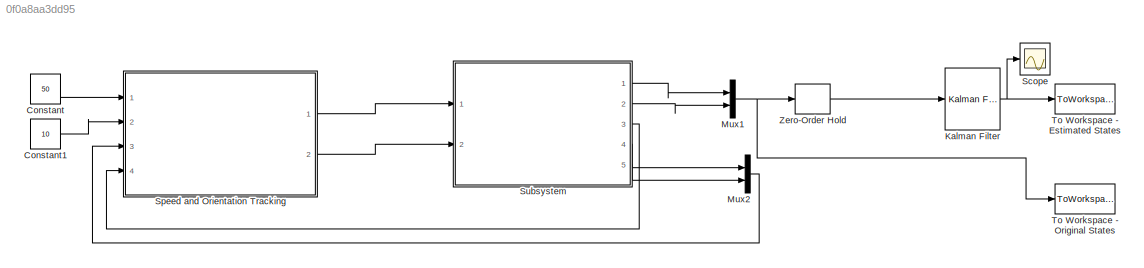
MODEL slx_0f0a8aa3dd95
KIND model
CONFIG AbsTol = auto
CONFIG FixedStep = auto
CONFIG MaxStep = auto
CONFIG MinStep = auto
CONFIG RelTol = 1e-3
CONFIG SampleTimeConstraint = Unconstrained
CONFIG Solver = ode45
CONFIG SolverMode = SingleTasking
CONFIG SolverName = ode45
CONFIG StartTime = 0.0
CONFIG StopTime = 10.0
BLOCK [Constant] Constant
  Value = 50
BLOCK [Constant] Constant1
  Value = 10
BLOCK [Reference] Kalman Filter  REF=ctrlSharedLib/Kalman Filter
  A = [0 1 1;1 0 1;0 1 0]
  AddEnablePort = off
  AddInputPort = off
  B = 1
  C = [1 0 0; 0 0 1]
  D = 0
  ExternalReset = None
  G = 1
  H = 0
  InitialEstimateSource = Dialog
  ModelSource = Individual A, B, C, D matrices
  ModelSourceVariable = ss(0.95,1,1,0,1)
  N = 0
  NumberOfInputs = 1
  NumberOfOutputs = 1
  NumberOfProcessNoiseInputs = 1
  NumberOfStates = 1
  OutputEstimatedY = off
  OutputP = off
  P0 = 10
  Ports = [1, 1]
  Q = 0.05
  R = 1
  SourceBlock = ctrlSharedLib/Kalman Filter
  SourceType = ctrlKalmanFilter
  TimeDomain = Discrete-Time
  TimeInvariantG = on
  TimeInvariantH = on
  TimeInvariantN = on
  TimeInvariantQ = on
  TimeInvariantR = on
  Ts = -1
  UseCurrentEstimator = on
  UseGH = off
  UseK = off
  X0 = 0
BLOCK [Mux] Mux1
  DisplayOption = bar
  Inputs = 2
  Ports = [2, 1]
BLOCK [Mux] Mux2
  DisplayOption = bar
  Inputs = 2
  Ports = [2, 1]
BLOCK [Scope] Scope
  DataFormat = StructureWithTime
  Decimation = 1
  Grid = on
  LimitDataPoints = off
  MaxDataPoints = 5000
  NumInputPorts = 1
  Ports = [1]
  SampleInput = off
  SampleTime = -1
  SaveName = ScopeData
  SaveToWorkspace = off
  ShowLegends = off
  TickLabels = OneTimeTick
  TimeRange = auto
  YMax = 13.1738
  YMin = -1.46376
  ZoomMode = on
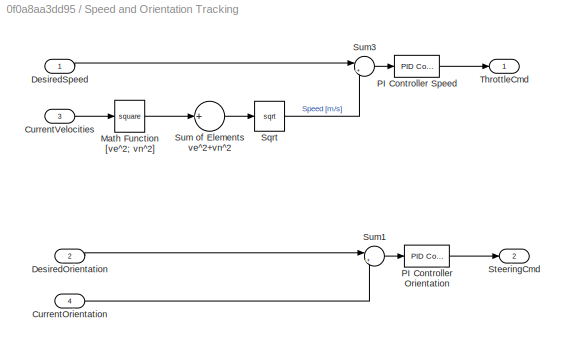
BLOCK [SubSystem] Speed and Orientation Tracking 
  Ports = [4, 2]
  RequestExecContextInheritance = off
  Variant = off
BLOCK [Inport] Speed and Orientation Tracking /CurrentOrientation
  IconDisplay = Port number
  Port = 4
BLOCK [Inport] Speed and Orientation Tracking /CurrentVelocities
  IconDisplay = Port number
  Port = 3
BLOCK [Inport] Speed and Orientation Tracking /DesiredOrientation
  IconDisplay = Port number
  Port = 2
BLOCK [Inport] Speed and Orientation Tracking /DesiredSpeed
  IconDisplay = Port number
BLOCK [Math] Speed and Orientation Tracking /Math Function [ve^2; vn^2]
  Operator = square
  Ports = [1, 1]
BLOCK [Reference] Speed and Orientation Tracking /PI Controller Orientation  REF=simulink/Continuous/PID Controller
  AntiWindupMode = clamping
  Controller = PI
  ControllerParametersSource = internal
  D = 0
  DGainOutDataTypeStr = Inherit: Inherit via internal rule
  DOutDataTypeStr = Inherit: Inherit via internal rule
  DOutMax = []
  DOutMin = []
  DParamDataTypeStr = Inherit: Inherit via internal rule
  DParamMax = []
  DParamMin = []
  DProdOutDataTypeStr = Inherit: Inherit via internal rule
  DifferentiatorICPrevScaledInput = 0
  DifferentiatorOutDataTypeStr = Inherit: Inherit via internal rule
  DifferentiatorOutMax = []
  DifferentiatorOutMin = []
  ExternalReset = none
  FilterContinuousStateAttributes = ''
  FilterMethod = Forward Euler
  FilterOutDataTypeStr = Inherit: Inherit via internal rule
  FilterOutMax = []
  FilterOutMin = []
  FilterRTWStateStorageClass = Auto
  FilterStateMustResolveToSignalObject = off
  Form = Parallel
  I = 0.3
  IGainOutDataTypeStr = Inherit: Inherit via internal rule
  IOutDataTypeStr = Inherit: Inherit via internal rule
  IOutMax = []
  IOutMin = []
  IParamDataTypeStr = Inherit: Inherit via internal rule
  IParamMax = []
  IParamMin = []
  IProdOutDataTypeStr = Inherit: Inherit via internal rule
  IgnoreLimit = off
  InitialConditionForFilter = 0
  InitialConditionForIntegrator = 0
  InitialConditionSource = internal
  IntegratorContinuousStateAttributes = ''
  IntegratorMethod = Forward Euler
  IntegratorOutDataTypeStr = Inherit: Inherit via internal rule
  IntegratorOutMax = []
  IntegratorOutMin = []
  IntegratorRTWStateStorageClass = Auto
  IntegratorStateMustResolveToSignalObject = off
  Kb = 1
  KbOutDataTypeStr = Inherit: Inherit via internal rule
  KbOutMax = []
  KbOutMin = []
  KbParamDataTypeStr = Inherit: Inherit via internal rule
  KbParamMax = []
  KbParamMin = []
  Kt = 1
  KtOutDataTypeStr = Inherit: Inherit via internal rule
  KtOutMax = []
  KtOutMin = []
  KtParamDataTypeStr = Inherit: Inherit via internal rule
  KtParamMax = []
  KtParamMin = []
  LimitOutput = on
  LinearizeAsGain = off
  LockScale = off
  LowerSaturationLimit = -20
  N = 100
  NGainOutDataTypeStr = Inherit: Inherit via internal rule
  NOutDataTypeStr = Inherit: Inherit via internal rule
  NOutMax = []
  NOutMin = []
  NParamDataTypeStr = Inherit: Inherit via internal rule
  NParamMax = []
  NParamMin = []
  NProdOutDataTypeStr = Inherit: Inherit via internal rule
  P = 1
  PGainOutDataTypeStr = Inherit: Inherit via internal rule
  POutDataTypeStr = Inherit: Inherit via internal rule
  POutMax = []
  POutMin = []
  PParamDataTypeStr = Inherit: Inherit via internal rule
  PParamMax = []
  PParamMin = []
  PProdOutDataTypeStr = Inherit: Inherit via internal rule
  Ports = [1, 1]
  RndMeth = Floor
  SampleTime = -1
  SaturateOnIntegerOverflow = off
  SaturationOutDataTypeStr = Inherit: Same as input
  SaturationOutMax = []
  SaturationOutMin = []
  SourceBlock = simulink/Continuous/PID Controller
  SourceType = PID 1dof
  SumAccumDataTypeStr = Inherit: Inherit via internal rule
  SumDAccumDataTypeStr = Inherit: Inherit via internal rule
  SumDOutDataTypeStr = Inherit: Inherit via internal rule
  SumDOutMax = []
  SumDOutMin = []
  SumI1AccumDataTypeStr = Inherit: Inherit via internal rule
  SumI1OutDataTypeStr = Inherit: Inherit via internal rule
  SumI1OutMax = []
  SumI1OutMin = []
  SumI2AccumDataTypeStr = Inherit: Inherit via internal rule
  SumI2OutDataTypeStr = Inherit: Inherit via internal rule
  SumI2OutMax = []
  SumI2OutMin = []
  SumI3AccumDataTypeStr = Inherit: Inherit via internal rule
  SumI3OutDataTypeStr = Inherit: Inherit via internal rule
  SumI3OutMax = []
  SumI3OutMin = []
  SumOutDataTypeStr = Inherit: Inherit via internal rule
  SumOutMax = []
  SumOutMin = []
  TimeDomain = Continuous-time
  TrackingMode = off
  UpperSaturationLimit = 20
  UseFilter = on
  ZeroCross = on
BLOCK [Reference] Speed and Orientation Tracking /PI Controller Speed  REF=simulink/Continuous/PID Controller
  AntiWindupMode = clamping
  Controller = PI
  ControllerParametersSource = internal
  D = 0
  DGainOutDataTypeStr = Inherit: Inherit via internal rule
  DOutDataTypeStr = Inherit: Inherit via internal rule
  DOutMax = []
  DOutMin = []
  DParamDataTypeStr = Inherit: Inherit via internal rule
  DParamMax = []
  DParamMin = []
  DProdOutDataTypeStr = Inherit: Inherit via internal rule
  DifferentiatorICPrevScaledInput = 0
  DifferentiatorOutDataTypeStr = Inherit: Inherit via internal rule
  DifferentiatorOutMax = []
  DifferentiatorOutMin = []
  ExternalReset = none
  FilterContinuousStateAttributes = ''
  FilterMethod = Forward Euler
  FilterOutDataTypeStr = Inherit: Inherit via internal rule
  FilterOutMax = []
  FilterOutMin = []
  FilterRTWStateStorageClass = Auto
  FilterStateMustResolveToSignalObject = off
  Form = Parallel
  I = 0.01
  IGainOutDataTypeStr = Inherit: Inherit via internal rule
  IOutDataTypeStr = Inherit: Inherit via internal rule
  IOutMax = []
  IOutMin = []
  IParamDataTypeStr = Inherit: Inherit via internal rule
  IParamMax = []
  IParamMin = []
  IProdOutDataTypeStr = Inherit: Inherit via internal rule
  IgnoreLimit = off
  InitialConditionForFilter = 0
  InitialConditionForIntegrator = 0
  InitialConditionSource = internal
  IntegratorContinuousStateAttributes = ''
  IntegratorMethod = Forward Euler
  IntegratorOutDataTypeStr = Inherit: Inherit via internal rule
  IntegratorOutMax = []
  IntegratorOutMin = []
  IntegratorRTWStateStorageClass = Auto
  IntegratorStateMustResolveToSignalObject = off
  Kb = 1
  KbOutDataTypeStr = Inherit: Inherit via internal rule
  KbOutMax = []
  KbOutMin = []
  KbParamDataTypeStr = Inherit: Inherit via internal rule
  KbParamMax = []
  KbParamMin = []
  Kt = 1
  KtOutDataTypeStr = Inherit: Inherit via internal rule
  KtOutMax = []
  KtOutMin = []
  KtParamDataTypeStr = Inherit: Inherit via internal rule
  KtParamMax = []
  KtParamMin = []
  LimitOutput = on
  LinearizeAsGain = off
  LockScale = off
  LowerSaturationLimit = -1
  N = 100
  NGainOutDataTypeStr = Inherit: Inherit via internal rule
  NOutDataTypeStr = Inherit: Inherit via internal rule
  NOutMax = []
  NOutMin = []
  NParamDataTypeStr = Inherit: Inherit via internal rule
  NParamMax = []
  NParamMin = []
  NProdOutDataTypeStr = Inherit: Inherit via internal rule
  P = 0.15
  PGainOutDataTypeStr = Inherit: Inherit via internal rule
  POutDataTypeStr = Inherit: Inherit via internal rule
  POutMax = []
  POutMin = []
  PParamDataTypeStr = Inherit: Inherit via internal rule
  PParamMax = []
  PParamMin = []
  PProdOutDataTypeStr = Inherit: Inherit via internal rule
  Ports = [1, 1]
  RndMeth = Floor
  SampleTime = -1
  SaturateOnIntegerOverflow = off
  SaturationOutDataTypeStr = Inherit: Same as input
  SaturationOutMax = []
  SaturationOutMin = []
  SourceBlock = simulink/Continuous/PID Controller
  SourceType = PID 1dof
  SumAccumDataTypeStr = Inherit: Inherit via internal rule
  SumDAccumDataTypeStr = Inherit: Inherit via internal rule
  SumDOutDataTypeStr = Inherit: Inherit via internal rule
  SumDOutMax = []
  SumDOutMin = []
  SumI1AccumDataTypeStr = Inherit: Inherit via internal rule
  SumI1OutDataTypeStr = Inherit: Inherit via internal rule
  SumI1OutMax = []
  SumI1OutMin = []
  SumI2AccumDataTypeStr = Inherit: Inherit via internal rule
  SumI2OutDataTypeStr = Inherit: Inherit via internal rule
  SumI2OutMax = []
  SumI2OutMin = []
  SumI3AccumDataTypeStr = Inherit: Inherit via internal rule
  SumI3OutDataTypeStr = Inherit: Inherit via internal rule
  SumI3OutMax = []
  SumI3OutMin = []
  SumOutDataTypeStr = Inherit: Inherit via internal rule
  SumOutMax = []
  SumOutMin = []
  TimeDomain = Continuous-time
  TrackingMode = off
  UpperSaturationLimit = 1
  UseFilter = on
  ZeroCross = on
BLOCK [Sqrt] Speed and Orientation Tracking /Sqrt
BLOCK [Outport] Speed and Orientation Tracking /SteeringCmd
  IconDisplay = Port number
  Port = 2
BLOCK [Sum] Speed and Orientation Tracking /Sum of Elements ve^2+vn^2
  InputSameDT = off
  Inputs = +
  OutDataTypeStr = Inherit: Inherit via internal rule
  Ports = [1, 1]
  SaturateOnIntegerOverflow = off
BLOCK [Sum] Speed and Orientation Tracking /Sum1
  IconShape = round
  InputSameDT = off
  Inputs = |+-
  OutDataTypeStr = Inherit: Inherit via internal rule
  Ports = [2, 1]
  SaturateOnIntegerOverflow = off
BLOCK [Sum] Speed and Orientation Tracking /Sum3
  IconShape = round
  InputSameDT = off
  Inputs = |+-
  OutDataTypeStr = Inherit: Inherit via internal rule
  Ports = [2, 1]
  SaturateOnIntegerOverflow = off
BLOCK [Outport] Speed and Orientation Tracking /ThrottleCmd
  IconDisplay = Port number
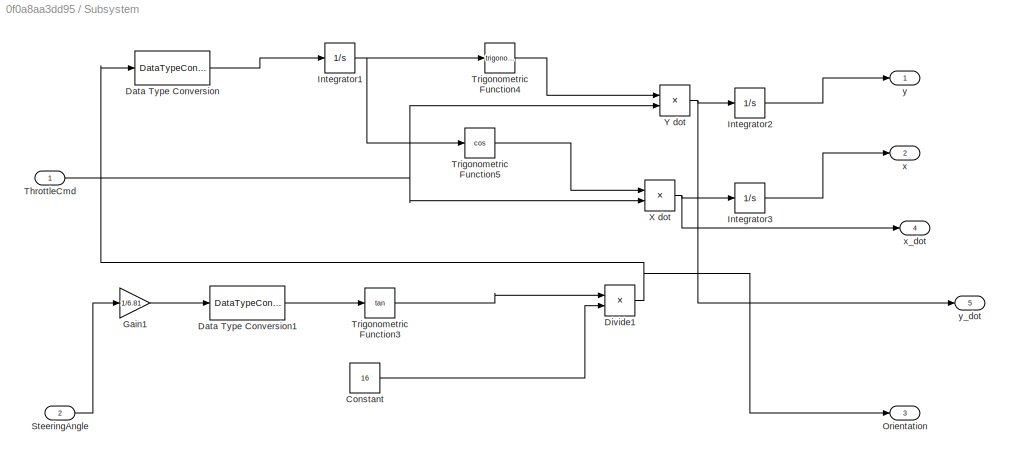
BLOCK [SubSystem] Subsystem
  Ports = [2, 5]
  RequestExecContextInheritance = off
  Variant = off
BLOCK [Constant] Subsystem/Constant
  Value = 16
BLOCK [DataTypeConversion] Subsystem/Data Type Conversion
  OutDataTypeStr = double
  RndMeth = Floor
  SaturateOnIntegerOverflow = off
BLOCK [DataTypeConversion] Subsystem/Data Type Conversion1
  OutDataTypeStr = double
  RndMeth = Floor
  SaturateOnIntegerOverflow = off
BLOCK [Product] Subsystem/Divide1
  InputSameDT = off
  Inputs = */
  OutDataTypeStr = Inherit: Inherit via internal rule
  Ports = [2, 1]
  RndMeth = Floor
  SaturateOnIntegerOverflow = off
BLOCK [Gain] Subsystem/Gain1
  Gain = 1/6.81
  OutDataTypeStr = Inherit: Inherit via internal rule
  ParamDataTypeStr = Inherit: Inherit via internal rule
  SaturateOnIntegerOverflow = off
BLOCK [Integrator] Subsystem/Integrator1
  Ports = [1, 1]
BLOCK [Integrator] Subsystem/Integrator2
  Ports = [1, 1]
BLOCK [Integrator] Subsystem/Integrator3
  Ports = [1, 1]
BLOCK [Outport] Subsystem/Orientation 
  IconDisplay = Port number
  Port = 3
BLOCK [Inport] Subsystem/SteeringAngle
  IconDisplay = Port number
  Port = 2
BLOCK [Inport] Subsystem/ThrottleCmd
  IconDisplay = Port number
BLOCK [Trigonometry] Subsystem/Trigonometric Function3
  Operator = tan
  OutputSignalType = real
  Ports = [1, 1]
BLOCK [Trigonometry] Subsystem/Trigonometric Function4
  Ports = [1, 1]
BLOCK [Trigonometry] Subsystem/Trigonometric Function5
  Operator = cos
  Ports = [1, 1]
BLOCK [Product] Subsystem/X dot 
  InputSameDT = off
  OutDataTypeStr = Inherit: Inherit via internal rule
  Ports = [2, 1]
  RndMeth = Floor
  SaturateOnIntegerOverflow = off
BLOCK [Product] Subsystem/Y dot 
  InputSameDT = off
  OutDataTypeStr = Inherit: Inherit via internal rule
  Ports = [2, 1]
  RndMeth = Floor
  SaturateOnIntegerOverflow = off
BLOCK [Outport] Subsystem/x
  IconDisplay = Port number
  Port = 2
BLOCK [Outport] Subsystem/x_dot 
  IconDisplay = Port number
  Port = 4
BLOCK [Outport] Subsystem/y
  IconDisplay = Port number
BLOCK [Outport] Subsystem/y_dot
  IconDisplay = Port number
  Port = 5
BLOCK [ToWorkspace] To Workspace - Estimated States
  FixptAsFi = on
  MaxDataPoints = inf
  Ports = [1]
  SampleTime = -1
  Save2DSignal = 2-D array (concatenate along first dimension)
  VariableName = xhat
BLOCK [ToWorkspace] To Workspace - Original States 
  FixptAsFi = on
  MaxDataPoints = inf
  Ports = [1]
  SampleTime = -1
  Save2DSignal = 2-D array (concatenate along first dimension)
  VariableName = xhat1
BLOCK [ZeroOrderHold] Zero-Order Hold
LINE Constant1:1 -> Speed and Orientation Tracking :2
LINE Constant:1 -> Speed and Orientation Tracking :1
NET Kalman Filter:1 -> Scope:1, To Workspace - Estimated States:1
NET Mux1:1 -> To Workspace - Original States :1, Zero-Order Hold:1
LINE Mux2:1 -> Speed and Orientation Tracking :3
LINE Speed and Orientation Tracking /CurrentOrientation:1 -> Speed and Orientation Tracking /Sum1:2
LINE Speed and Orientation Tracking /CurrentVelocities:1 -> Speed and Orientation Tracking /Math Function [ve^2; vn^2]:1
LINE Speed and Orientation Tracking /DesiredOrientation:1 -> Speed and Orientation Tracking /Sum1:1
LINE Speed and Orientation Tracking /DesiredSpeed:1 -> Speed and Orientation Tracking /Sum3:1
LINE Speed and Orientation Tracking /Math Function [ve^2; vn^2]:1 -> Speed and Orientation Tracking /Sum of Elements ve^2+vn^2:1
LINE Speed and Orientation Tracking /PI Controller Orientation:1 -> Speed and Orientation Tracking /SteeringCmd:1
LINE Speed and Orientation Tracking /PI Controller Speed:1 -> Speed and Orientation Tracking /ThrottleCmd:1
LINE Speed and Orientation Tracking /Sqrt:1 -> Speed and Orientation Tracking /Sum3:2
LINE Speed and Orientation Tracking /Sum of Elements ve^2+vn^2:1 -> Speed and Orientation Tracking /Sqrt:1
LINE Speed and Orientation Tracking /Sum1:1 -> Speed and Orientation Tracking /PI Controller Orientation:1
LINE Speed and Orientation Tracking /Sum3:1 -> Speed and Orientation Tracking /PI Controller Speed:1
LINE Speed and Orientation Tracking :1 -> Subsystem:1
LINE Speed and Orientation Tracking :2 -> Subsystem:2
LINE Subsystem/Constant:1 -> Subsystem/Divide1:2
LINE Subsystem/Data Type Conversion1:1 -> Subsystem/Trigonometric Function3:1
LINE Subsystem/Data Type Conversion:1 -> Subsystem/Integrator1:1
NET Subsystem/Divide1:1 -> Subsystem/Data Type Conversion:1, Subsystem/Orientation :1
LINE Subsystem/Gain1:1 -> Subsystem/Data Type Conversion1:1
NET Subsystem/Integrator1:1 -> Subsystem/Trigonometric Function4:1, Subsystem/Trigonometric Function5:1
LINE Subsystem/Integrator2:1 -> Subsystem/y:1
LINE Subsystem/Integrator3:1 -> Subsystem/x:1
LINE Subsystem/SteeringAngle:1 -> Subsystem/Gain1:1
NET Subsystem/ThrottleCmd:1 -> Subsystem/X dot :2, Subsystem/Y dot :2
LINE Subsystem/Trigonometric Function3:1 -> Subsystem/Divide1:1
LINE Subsystem/Trigonometric Function4:1 -> Subsystem/Y dot :1
LINE Subsystem/Trigonometric Function5:1 -> Subsystem/X dot :1
NET Subsystem/X dot :1 -> Subsystem/Integrator3:1, Subsystem/x_dot :1
NET Subsystem/Y dot :1 -> Subsystem/Integrator2:1, Subsystem/y_dot:1
LINE Subsystem:1 -> Mux1:1
LINE Subsystem:2 -> Mux1:2
LINE Subsystem:3 -> Speed and Orientation Tracking :4
LINE Subsystem:4 -> Mux2:1
LINE Subsystem:5 -> Mux2:2
LINE Zero-Order Hold:1 -> Kalman Filter:1
note: NET lines group one-source signal fan-out (src -> all destinations, sorted); 1:1 wires keep LINE
